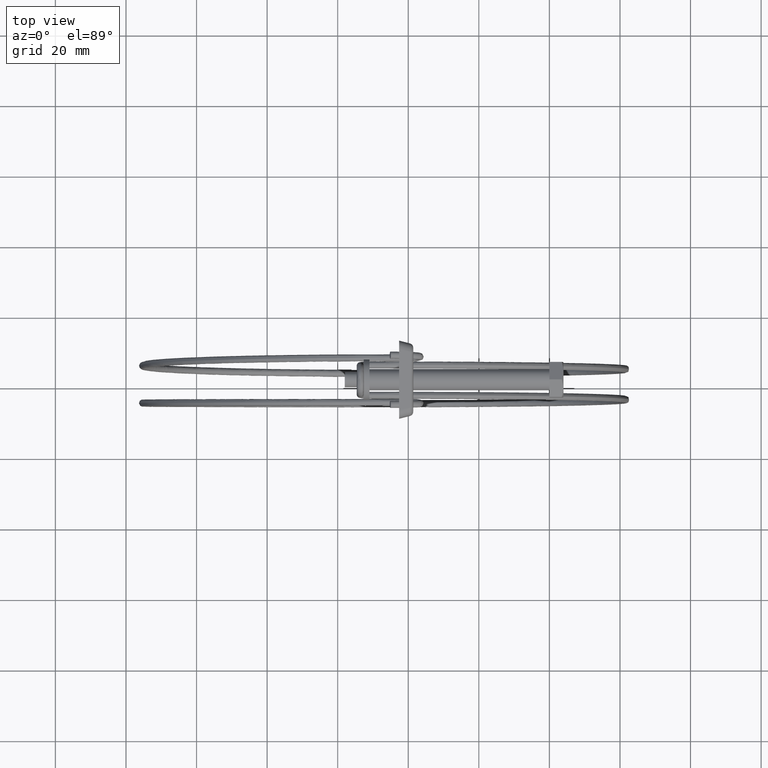
[diagram: clean part render]
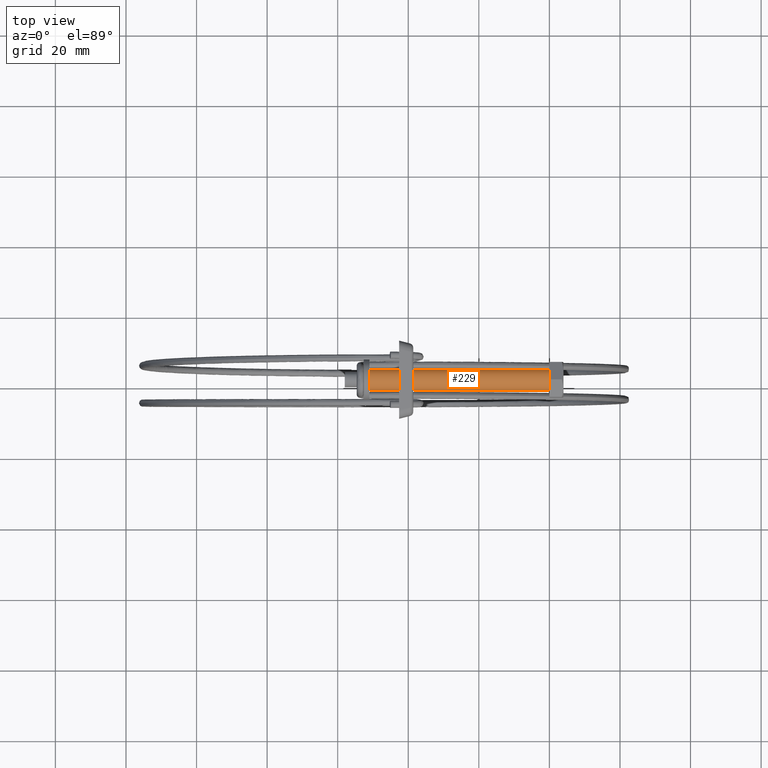
[diagram: same view with one face highlighted and labeled with its STEP entity id]
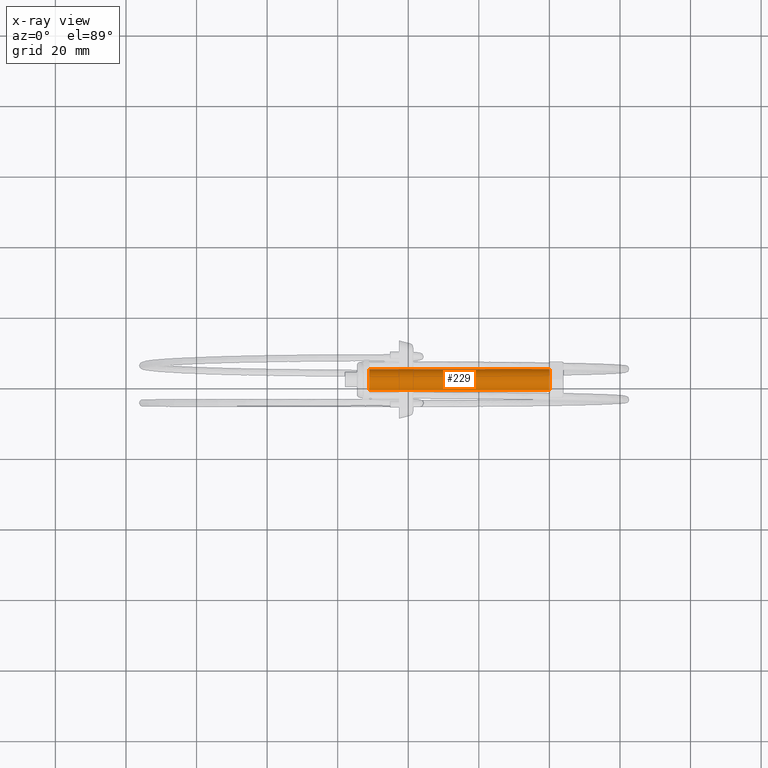
[diagram: x-ray of the same camera — body ghosted, the highlighted face saturated]
A machine part, top view. The second image highlights one B-rep face of the part: STEP entity #229.
The next image is the same camera in x-ray: the body ghosted, the highlighted face saturated — about 0% of this face is hidden behind the body in this view.
In plain terms, the highlighted face is a freeform B-spline surface patch.
Its self-contained STEP definition (entity closure, byte-faithful):
#66=CARTESIAN_POINT('',(1.703657E-015,2.979028579000742,0.354102704730574));
#67=VERTEX_POINT('',#66);
#85=CARTESIAN_POINT('',(1.665335E-015,-2.994404395219584,-0.183145619358829));
#86=VERTEX_POINT('',#85);
#100=CARTESIAN_POINT('',(-51.0,-2.994404395219584,-0.183145619358829));
#101=VERTEX_POINT('',#100);
#102=CARTESIAN_POINT('',(1.665335E-015,-2.994404395219584,-0.183145619358829));
#103=CARTESIAN_POINT('',(-51.0,-2.994404395219584,-0.183145619358829));
#104=QUASI_UNIFORM_CURVE('',1,(#102,#103),.UNSPECIFIED.,.F.,.U.);
#105=EDGE_CURVE('',#86,#101,#104,.T.);
#122=CARTESIAN_POINT('',(-51.0,2.979028579000742,0.354102704730575));
#123=VERTEX_POINT('',#122);
#139=CARTESIAN_POINT('',(1.703657E-015,2.979028579000742,0.354102704730574));
#140=CARTESIAN_POINT('',(-51.0,2.979028579000742,0.354102704730575));
#141=QUASI_UNIFORM_CURVE('',1,(#139,#140),.UNSPECIFIED.,.F.,.U.);
#142=EDGE_CURVE('',#67,#123,#141,.T.);
#147=CARTESIAN_POINT('',(1.275000000000001,-2.994404395265715,-0.183145618604578));
#148=CARTESIAN_POINT('',(1.275000000000001,-3.177550013870294,2.811258776661137));
#149=CARTESIAN_POINT('',(1.275000000000001,-0.183145618604578,2.994404395265715));
#150=CARTESIAN_POINT('',(1.275000000000001,2.644630472518604,3.167358590197703));
#151=CARTESIAN_POINT('',(1.275000000000002,2.979028579091114,0.354102703970289));
#152=CARTESIAN_POINT('',(-52.306875000000012,-2.994404395265715,-0.183145618604578));
#153=CARTESIAN_POINT('',(-52.306875000000019,-3.177550013870294,2.811258776661137));
#154=CARTESIAN_POINT('',(-52.306875000000012,-0.183145618604578,2.994404395265715));
#155=CARTESIAN_POINT('',(-52.306875000000005,2.644630472518604,3.167358590197703));
#156=CARTESIAN_POINT('',(-52.306875000000026,2.979028579091114,0.354102703970289));
#164=(BOUNDED_SURFACE()B_SPLINE_SURFACE(2,1,((#147,#152),(#148,#153),(#149,#154),(#150,#155),(#151,#156)),.UNSPECIFIED.,.F.,.F.,.U.)B_SPLINE_SURFACE_WITH_KNOTS((3,2,3),(2,2),(0.0,4.970562748477330,9.742302987015567),(0.0,53.581875000000032),.UNSPECIFIED.)GEOMETRIC_REPRESENTATION_ITEM()RATIONAL_B_SPLINE_SURFACE(((1.0,1.0),(0.707106781186548,0.707106781186548),(1.0,1.0),(0.718822509939086,0.718822509939086),(0.977505800795127,0.977505800795127)))REPRESENTATION_ITEM('')SURFACE());
#165=CARTESIAN_POINT('',(0.0,0.0,3.000000000000115));
#166=VERTEX_POINT('',#165);
#167=CARTESIAN_POINT('',(0.0,0.0,3.000000000000115));
#168=CARTESIAN_POINT('',(0.0,2.664523576484596,3.000000000000113));
#169=CARTESIAN_POINT('',(1.703657E-015,2.979028579000742,0.354102704730574));
#177=(BOUNDED_CURVE()B_SPLINE_CURVE(2,(#167,#168,#169),.UNSPECIFIED.,.F.,.U.)B_SPLINE_CURVE_WITH_KNOTS((3,3),(0.500000000000000,0.729562473429381),.UNSPECIFIED.)CURVE()GEOMETRIC_REPRESENTATION_ITEM()RATIONAL_B_SPLINE_CURVE((1.0,0.731050832953964,0.956026754018807))REPRESENTATION_ITEM(''));
#178=EDGE_CURVE('',#166,#67,#177,.T.);
#179=ORIENTED_EDGE('',*,*,#178,.T.);
#180=ORIENTED_EDGE('',*,*,#142,.T.);
#181=CARTESIAN_POINT('',(-51.0,0.0,3.000000000000115));
#182=VERTEX_POINT('',#181);
#183=CARTESIAN_POINT('',(-51.0,0.0,3.000000000000115));
#184=CARTESIAN_POINT('',(-51.000000000000007,2.664523576484588,3.000000000000114));
#185=CARTESIAN_POINT('',(-50.999999999999986,2.979028579000742,0.354102704730575));
#193=(BOUNDED_CURVE()B_SPLINE_CURVE(2,(#183,#184,#185),.UNSPECIFIED.,.F.,.U.)B_SPLINE_CURVE_WITH_KNOTS((3,3),(0.0,0.229562473429381),.UNSPECIFIED.)CURVE()GEOMETRIC_REPRESENTATION_ITEM()RATIONAL_B_SPLINE_CURVE((1.0,0.731050832953964,0.956026754018805))REPRESENTATION_ITEM(''));
#194=EDGE_CURVE('',#182,#123,#193,.T.);
#195=ORIENTED_EDGE('',*,*,#194,.F.);
#196=CARTESIAN_POINT('',(-51.0,-2.994404395219584,-0.183145619358829));
#197=CARTESIAN_POINT('',(-51.000000000000007,-3.000000000000116,-0.091658290652136));
#198=CARTESIAN_POINT('',(-51.0,-3.000000000000115,0.0));
#199=CARTESIAN_POINT('',(-50.999999999999993,-3.000000000000114,3.000000000000114));
#200=CARTESIAN_POINT('',(-51.0,0.0,3.000000000000115));
#208=(BOUNDED_CURVE()B_SPLINE_CURVE(2,(#196,#197,#198,#199,#200),.UNSPECIFIED.,.F.,.U.)B_SPLINE_CURVE_WITH_KNOTS((3,2,3),(0.739332962155044,0.750000000000000,1.0),.UNSPECIFIED.)CURVE()GEOMETRIC_REPRESENTATION_ITEM()RATIONAL_B_SPLINE_CURVE((0.976072041486906,0.987502787801543,1.0,0.707106781186547,1.0))REPRESENTATION_ITEM(''));
#209=EDGE_CURVE('',#101,#182,#208,.T.);
#210=ORIENTED_EDGE('',*,*,#209,.F.);
#211=ORIENTED_EDGE('',*,*,#105,.F.);
#212=CARTESIAN_POINT('',(1.665335E-015,-2.994404395219584,-0.183145619358829));
#213=CARTESIAN_POINT('',(0.0,-3.000000000000116,-0.091658290652136));
#214=CARTESIAN_POINT('',(0.0,-3.000000000000115,0.0));
#215=CARTESIAN_POINT('',(0.0,-3.000000000000114,3.000000000000114));
#216=CARTESIAN_POINT('',(0.0,0.0,3.000000000000115));
#224=(BOUNDED_CURVE()B_SPLINE_CURVE(2,(#212,#213,#214,#215,#216),.UNSPECIFIED.,.F.,.U.)B_SPLINE_CURVE_WITH_KNOTS((3,2,3),(0.239332962155044,0.250000000000000,0.500000000000000),.UNSPECIFIED.)CURVE()GEOMETRIC_REPRESENTATION_ITEM()RATIONAL_B_SPLINE_CURVE((0.976072041486906,0.987502787801543,1.0,0.707106781186547,1.0))REPRESENTATION_ITEM(''));
#225=EDGE_CURVE('',#86,#166,#224,.T.);
#226=ORIENTED_EDGE('',*,*,#225,.T.);
#227=EDGE_LOOP('',(#179,#180,#195,#210,#211,#226));
#228=FACE_OUTER_BOUND('',#227,.T.);
#229=ADVANCED_FACE('',(#228),#164,.T.);